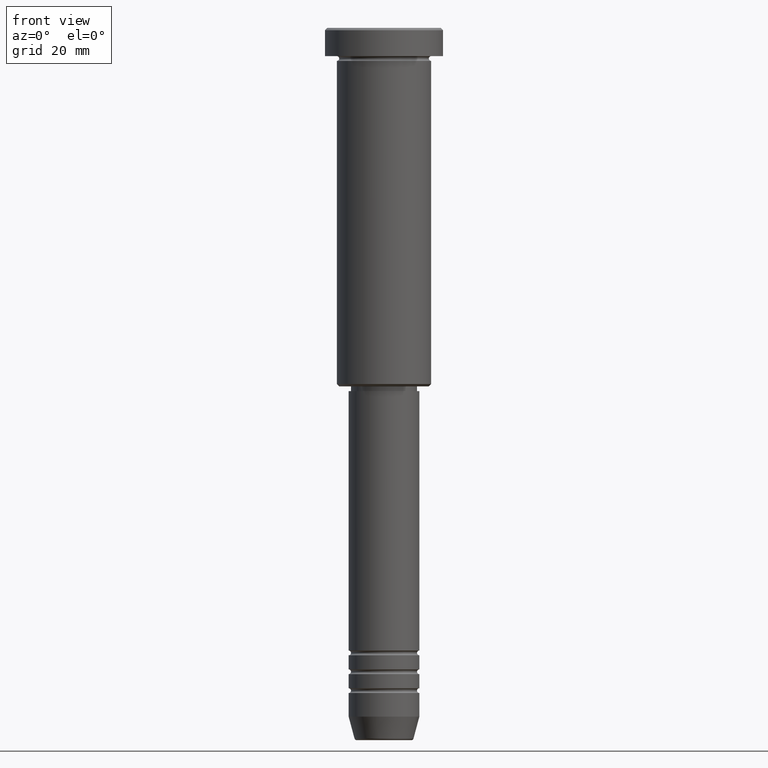
[diagram: clean part render]
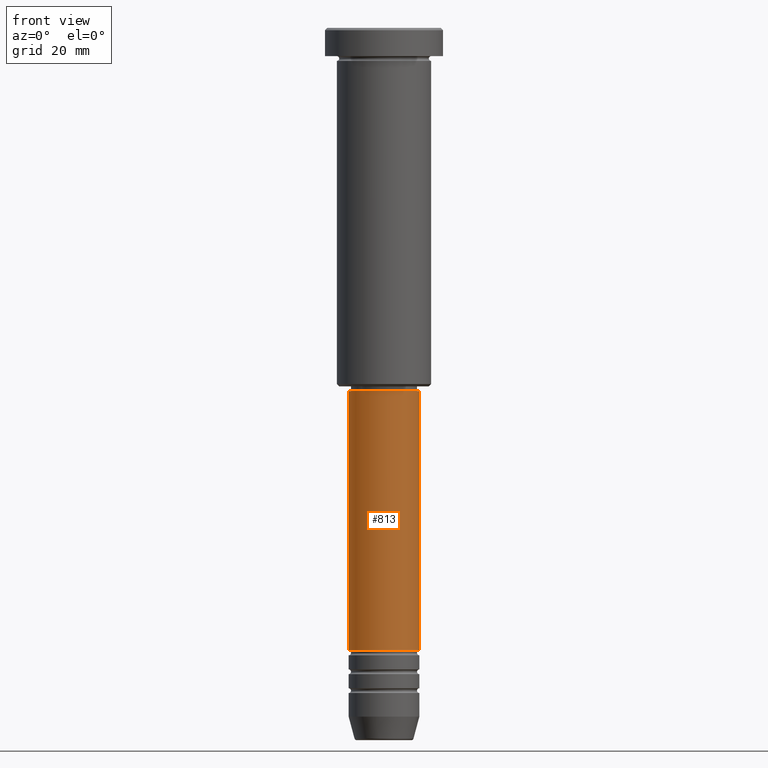
[diagram: same view with one face highlighted and labeled with its STEP entity id]
A machine part, front view. The second image highlights one B-rep face of the part: STEP entity #813.
In plain terms, the highlighted cylindrical surface (edge-blend (fillet) strip) has radius 7.5 mm, axis along (-0, -0, 1).
Its self-contained STEP definition (entity closure, byte-faithful):
#88 = CARTESIAN_POINT ( 'NONE',  ( 0.000000000000000000, 0.000000000000000000, -131.9999999999998863 ) ) ;
#89 = CYLINDRICAL_SURFACE ( 'NONE', #932, 7.500000000000000000 ) ;
#105 = EDGE_CURVE ( 'NONE', #707, #1116, #496, .T. ) ;
#132 = VERTEX_POINT ( 'NONE', #793 ) ;
#163 = ORIENTED_EDGE ( 'NONE', *, *, #664, .F. ) ;
#192 = VECTOR ( 'NONE', #714, 1000.000000000000000 ) ;
#243 = VECTOR ( 'NONE', #880, 1000.000000000000000 ) ;
#250 = CARTESIAN_POINT ( 'NONE',  ( 0.000000000000000000, 0.000000000000000000, -77.00000000000001421 ) ) ;
#321 = EDGE_CURVE ( 'NONE', #707, #132, #894, .T. ) ;
#352 = CARTESIAN_POINT ( 'NONE',  ( 7.500000000000000000, 0.000000000000000000, 0.000000000000000000 ) ) ;
#415 = CARTESIAN_POINT ( 'NONE',  ( -7.500000000000000000, 9.184850993605147944E-16, -77.00000000000001421 ) ) ;
#456 = DIRECTION ( 'NONE',  ( 1.000000000000000000, 0.000000000000000000, 0.000000000000000000 ) ) ;
#469 = FACE_OUTER_BOUND ( 'NONE', #846, .T. ) ;
#496 = LINE ( 'NONE', #688, #243 ) ;
#621 = DIRECTION ( 'NONE',  ( -0.000000000000000000, -0.000000000000000000, 1.000000000000000000 ) ) ;
#664 = EDGE_CURVE ( 'NONE', #1116, #1019, #1139, .T. ) ;
#675 = ORIENTED_EDGE ( 'NONE', *, *, #321, .T. ) ;
#688 = CARTESIAN_POINT ( 'NONE',  ( -7.500000000000000000, 9.184850993605147944E-16, 0.000000000000000000 ) ) ;
#703 = LINE ( 'NONE', #352, #192 ) ;
#707 = VERTEX_POINT ( 'NONE', #800 ) ;
#714 = DIRECTION ( 'NONE',  ( -0.000000000000000000, -0.000000000000000000, 1.000000000000000000 ) ) ;
#724 = DIRECTION ( 'NONE',  ( -0.000000000000000000, -0.000000000000000000, 1.000000000000000000 ) ) ;
#740 = AXIS2_PLACEMENT_3D ( 'NONE', #88, #724, #456 ) ;
#779 = AXIS2_PLACEMENT_3D ( 'NONE', #250, #621, #896 ) ;
#788 = EDGE_CURVE ( 'NONE', #132, #1019, #703, .T. ) ;
#793 = CARTESIAN_POINT ( 'NONE',  ( 7.500000000000000888, 0.000000000000000000, -131.9999999999998863 ) ) ;
#800 = CARTESIAN_POINT ( 'NONE',  ( -7.500000000000001776, 9.184850993605149917E-16, -131.9999999999998863 ) ) ;
#813 = ADVANCED_FACE ( 'NONE', ( #469 ), #89, .T. ) ;
#846 = EDGE_LOOP ( 'NONE', ( #958, #675, #1040, #163 ) ) ;
#880 = DIRECTION ( 'NONE',  ( -0.000000000000000000, -0.000000000000000000, 1.000000000000000000 ) ) ;
#894 = CIRCLE ( 'NONE', #740, 7.500000000000000888 ) ;
#896 = DIRECTION ( 'NONE',  ( 1.000000000000000000, 0.000000000000000000, 0.000000000000000000 ) ) ;
#921 = DIRECTION ( 'NONE',  ( 1.000000000000000000, 0.000000000000000000, 0.000000000000000000 ) ) ;
#932 = AXIS2_PLACEMENT_3D ( 'NONE', #986, #1164, #921 ) ;
#958 = ORIENTED_EDGE ( 'NONE', *, *, #105, .F. ) ;
#986 = CARTESIAN_POINT ( 'NONE',  ( 0.000000000000000000, 0.000000000000000000, 0.000000000000000000 ) ) ;
#1019 = VERTEX_POINT ( 'NONE', #1038 ) ;
#1038 = CARTESIAN_POINT ( 'NONE',  ( 7.500000000000000000, 0.000000000000000000, -77.00000000000001421 ) ) ;
#1040 = ORIENTED_EDGE ( 'NONE', *, *, #788, .T. ) ;
#1116 = VERTEX_POINT ( 'NONE', #415 ) ;
#1139 = CIRCLE ( 'NONE', #779, 7.500000000000000000 ) ;
#1164 = DIRECTION ( 'NONE',  ( -0.000000000000000000, -0.000000000000000000, 1.000000000000000000 ) ) ;